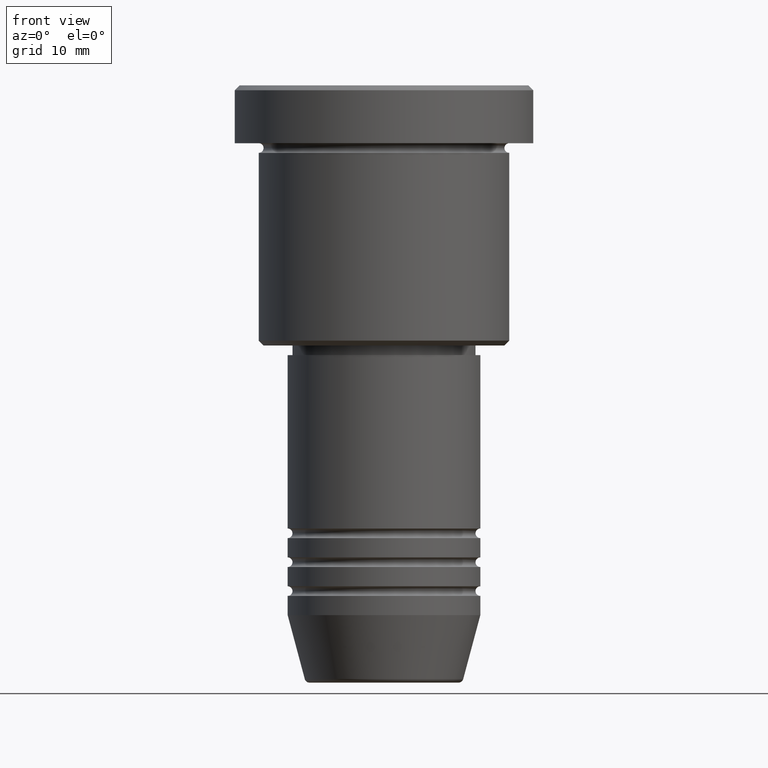
[diagram: clean part render]
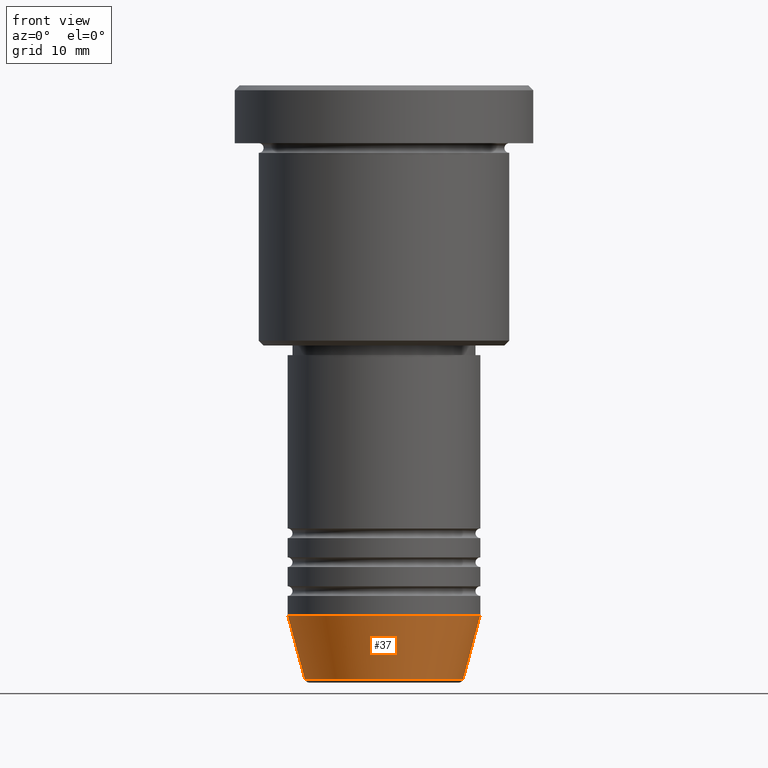
[diagram: same view with one face highlighted and labeled with its STEP entity id]
A machine part, front view. The second image highlights one B-rep face of the part: STEP entity #37.
In plain terms, the highlighted conical surface has half-angle 15 deg.
Its self-contained STEP definition (entity closure, byte-faithful):
#4 = DIRECTION ( 'NONE',  ( 0.2588190451025213501, 0.000000000000000000, 0.9659258262890680902 ) ) ;
#37 = ADVANCED_FACE ( 'NONE', ( #878 ), #884, .T. ) ;
#48 = CARTESIAN_POINT ( 'NONE',  ( -8.223655072137191269, 1.115877042642912054E-15, -61.62940952255126348 ) ) ;
#63 = DIRECTION ( 'NONE',  ( -0.000000000000000000, -0.000000000000000000, 1.000000000000000000 ) ) ;
#87 = AXIS2_PLACEMENT_3D ( 'NONE', #347, #626, #1085 ) ;
#183 = VECTOR ( 'NONE', #185, 1000.000000000000000 ) ;
#185 = DIRECTION ( 'NONE',  ( -0.2588190451025213501, 3.169619151431772337E-17, 0.9659258262890680902 ) ) ;
#191 = LINE ( 'NONE', #643, #675 ) ;
#203 = CARTESIAN_POINT ( 'NONE',  ( -10.00000000000000000, 1.224646799147353256E-15, -55.00000000000000000 ) ) ;
#255 = VERTEX_POINT ( 'NONE', #203 ) ;
#334 = CIRCLE ( 'NONE', #87, 8.223655072137191269 ) ;
#347 = CARTESIAN_POINT ( 'NONE',  ( 0.000000000000000000, 0.000000000000000000, -61.62940952255126348 ) ) ;
#374 = DIRECTION ( 'NONE',  ( 1.000000000000000000, 0.000000000000000000, 0.000000000000000000 ) ) ;
#401 = ORIENTED_EDGE ( 'NONE', *, *, #736, .T. ) ;
#419 = DIRECTION ( 'NONE',  ( 1.000000000000000000, 0.000000000000000000, 0.000000000000000000 ) ) ;
#440 = EDGE_LOOP ( 'NONE', ( #983, #855, #401, #443 ) ) ;
#443 = ORIENTED_EDGE ( 'NONE', *, *, #784, .F. ) ;
#467 = VERTEX_POINT ( 'NONE', #48 ) ;
#477 = CARTESIAN_POINT ( 'NONE',  ( 0.000000000000000000, 0.000000000000000000, -55.00000000000000000 ) ) ;
#534 = CARTESIAN_POINT ( 'NONE',  ( 10.00000000000000000, 0.000000000000000000, -55.00000000000000000 ) ) ;
#579 = EDGE_CURVE ( 'NONE', #467, #1150, #334, .T. ) ;
#626 = DIRECTION ( 'NONE',  ( -0.000000000000000000, -0.000000000000000000, 1.000000000000000000 ) ) ;
#643 = CARTESIAN_POINT ( 'NONE',  ( 10.00000000000000000, 0.000000000000000000, -55.00000000000000000 ) ) ;
#675 = VECTOR ( 'NONE', #4, 1000.000000000000000 ) ;
#736 = EDGE_CURVE ( 'NONE', #1150, #1086, #191, .T. ) ;
#754 = LINE ( 'NONE', #1017, #183 ) ;
#755 = CARTESIAN_POINT ( 'NONE',  ( 8.223655072137191269, 0.000000000000000000, -61.62940952255126348 ) ) ;
#770 = EDGE_CURVE ( 'NONE', #467, #255, #754, .T. ) ;
#784 = EDGE_CURVE ( 'NONE', #255, #1086, #1154, .T. ) ;
#855 = ORIENTED_EDGE ( 'NONE', *, *, #579, .T. ) ;
#878 = FACE_OUTER_BOUND ( 'NONE', #440, .T. ) ;
#884 = CONICAL_SURFACE ( 'NONE', #1078, 10.00000000000000000, 0.2617993877991500740 ) ;
#983 = ORIENTED_EDGE ( 'NONE', *, *, #770, .F. ) ;
#1017 = CARTESIAN_POINT ( 'NONE',  ( -10.00000000000000000, 1.224646799147353256E-15, -55.00000000000000000 ) ) ;
#1018 = AXIS2_PLACEMENT_3D ( 'NONE', #477, #1124, #374 ) ;
#1067 = CARTESIAN_POINT ( 'NONE',  ( 0.000000000000000000, 0.000000000000000000, -55.00000000000000000 ) ) ;
#1078 = AXIS2_PLACEMENT_3D ( 'NONE', #1067, #63, #419 ) ;
#1085 = DIRECTION ( 'NONE',  ( 1.000000000000000000, 0.000000000000000000, 0.000000000000000000 ) ) ;
#1086 = VERTEX_POINT ( 'NONE', #534 ) ;
#1124 = DIRECTION ( 'NONE',  ( -0.000000000000000000, -0.000000000000000000, 1.000000000000000000 ) ) ;
#1150 = VERTEX_POINT ( 'NONE', #755 ) ;
#1154 = CIRCLE ( 'NONE', #1018, 10.00000000000000000 ) ;